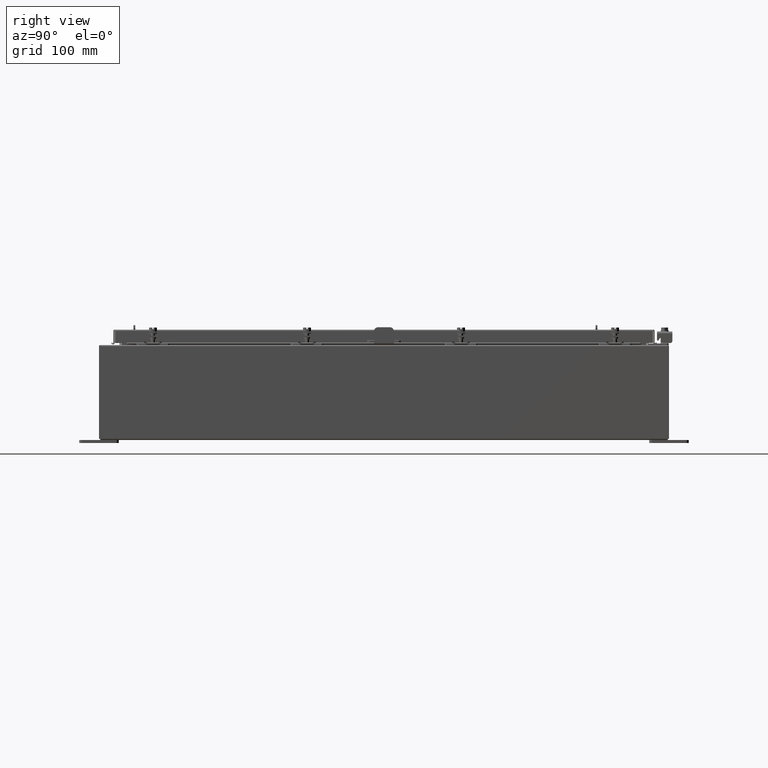
[diagram: clean part render]
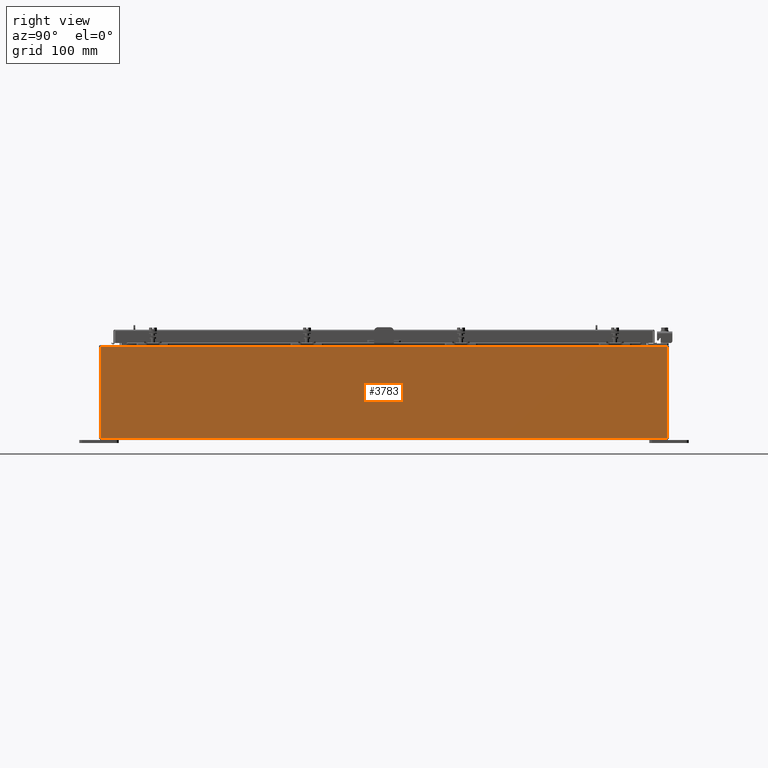
[diagram: same view with one face highlighted and labeled with its STEP entity id]
A machine part, right view. The second image highlights one B-rep face of the part: STEP entity #3783.
In plain terms, the highlighted planar face has unit normal (-1, 0, 0).
Its self-contained STEP definition (entity closure, byte-faithful):
#70 = VECTOR ( 'NONE', #22534, 39.37007874015748100 ) ;
#272 = ORIENTED_EDGE ( 'NONE', *, *, #2264, .F. ) ;
#1550 = DIRECTION ( 'NONE',  ( 3.319545939341922000E-015, 0.0000000000000000000, 1.000000000000000000 ) ) ;
#2264 = EDGE_CURVE ( 'NONE', #13876, #19156, #19418, .T. ) ;
#2443 = CARTESIAN_POINT ( 'NONE',  ( 12.00000000000002100, -17.92530000000000000, 5.837600000000001000 ) ) ;
#3783 = ADVANCED_FACE ( 'NONE', ( #17389 ), #21286, .F. ) ;
#4086 = DIRECTION ( 'NONE',  ( -2.023619111371655800E-031, -1.000000000000000000, -6.096072018129156600E-017 ) ) ;
#6508 = DIRECTION ( 'NONE',  ( 3.319545939341922800E-015, 0.0000000000000000000, 1.000000000000000000 ) ) ;
#7520 = EDGE_CURVE ( 'NONE', #18960, #19156, #11744, .T. ) ;
#8766 = LINE ( 'NONE', #17256, #13515 ) ;
#8933 = DIRECTION ( 'NONE',  ( -3.319545939341922800E-015, 0.0000000000000000000, -1.000000000000000000 ) ) ;
#9145 = EDGE_CURVE ( 'NONE', #23096, #18960, #9586, .T. ) ;
#9586 = LINE ( 'NONE', #11731, #70 ) ;
#9848 = VECTOR ( 'NONE', #4086, 39.37007874015748100 ) ;
#10494 = CARTESIAN_POINT ( 'NONE',  ( 12.00000000000000200, 0.0000000000000000000, -4.009536492811464800E-014 ) ) ;
#11196 = CARTESIAN_POINT ( 'NONE',  ( 12.00000000000000200, -17.92530000000000400, 0.01299999999999986400 ) ) ;
#11731 = CARTESIAN_POINT ( 'NONE',  ( 12.00000000000002100, 17.92530000000000000, 5.837600000000001000 ) ) ;
#11744 = LINE ( 'NONE', #21530, #20172 ) ;
#12002 = CARTESIAN_POINT ( 'NONE',  ( 12.00000000000002100, 17.92530000000000000, 5.837600000000001000 ) ) ;
#12048 = CARTESIAN_POINT ( 'NONE',  ( 12.00000000000000200, -17.92530000000000400, 0.01300000000000095200 ) ) ;
#12316 = DIRECTION ( 'NONE',  ( -1.000000000000000000, 0.0000000000000000000, 3.319545939341922000E-015 ) ) ;
#13515 = VECTOR ( 'NONE', #6508, 39.37007874015748100 ) ;
#13876 = VERTEX_POINT ( 'NONE', #16176 ) ;
#13918 = EDGE_LOOP ( 'NONE', ( #14031, #14602, #272, #18988 ) ) ;
#14031 = ORIENTED_EDGE ( 'NONE', *, *, #9145, .T. ) ;
#14602 = ORIENTED_EDGE ( 'NONE', *, *, #7520, .T. ) ;
#16176 = CARTESIAN_POINT ( 'NONE',  ( 12.00000000000000200, 17.92529999999999600, 0.01300000000000205000 ) ) ;
#17256 = CARTESIAN_POINT ( 'NONE',  ( 12.00000000000000200, 17.92529999999999600, -4.009536492811464800E-014 ) ) ;
#17389 = FACE_OUTER_BOUND ( 'NONE', #13918, .T. ) ;
#18960 = VERTEX_POINT ( 'NONE', #2443 ) ;
#18988 = ORIENTED_EDGE ( 'NONE', *, *, #23013, .T. ) ;
#19156 = VERTEX_POINT ( 'NONE', #12048 ) ;
#19418 = LINE ( 'NONE', #11196, #9848 ) ;
#19611 = AXIS2_PLACEMENT_3D ( 'NONE', #10494, #12316, #1550 ) ;
#20172 = VECTOR ( 'NONE', #8933, 39.37007874015748100 ) ;
#21286 = PLANE ( 'NONE',  #19611 ) ;
#21530 = CARTESIAN_POINT ( 'NONE',  ( 12.00000000000000200, -17.92530000000000400, -4.009536492811464800E-014 ) ) ;
#22534 = DIRECTION ( 'NONE',  ( -0.0000000000000000000, -1.000000000000000000, -0.0000000000000000000 ) ) ;
#23013 = EDGE_CURVE ( 'NONE', #13876, #23096, #8766, .T. ) ;
#23096 = VERTEX_POINT ( 'NONE', #12002 ) ;